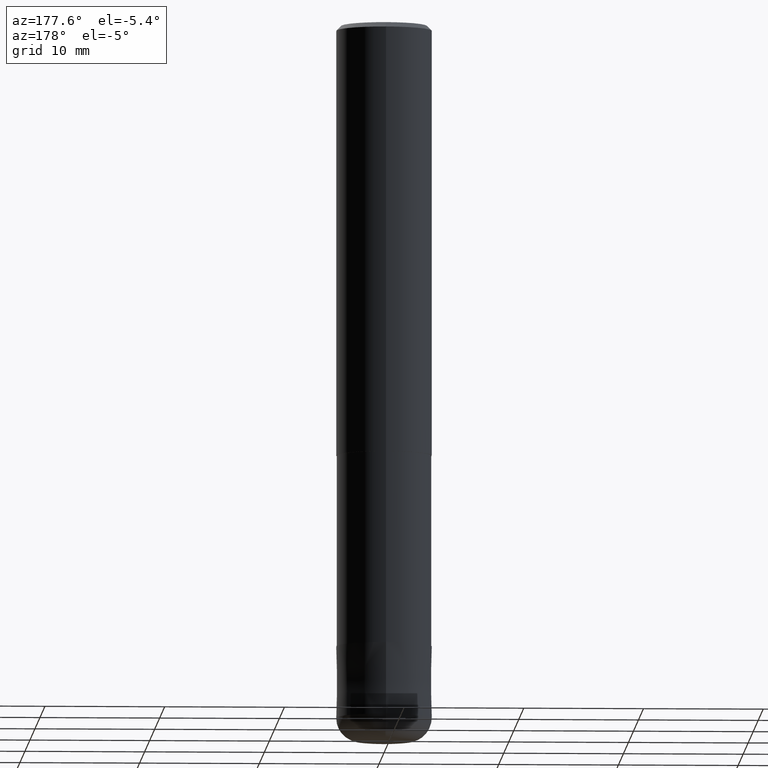
[diagram: clean part render]
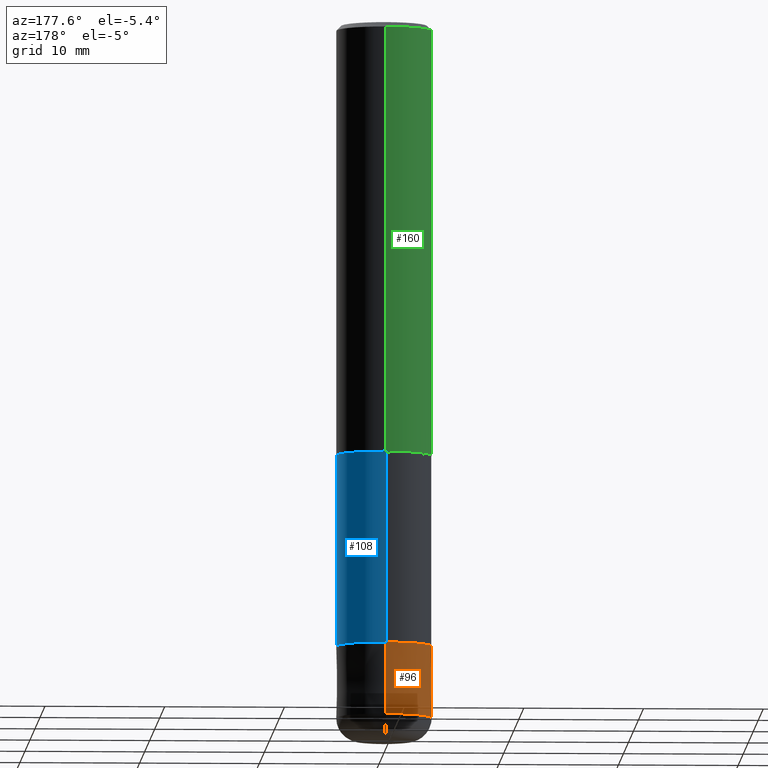
[diagram: same view with three faces highlighted in distinct colors, each labeled with its STEP entity id]
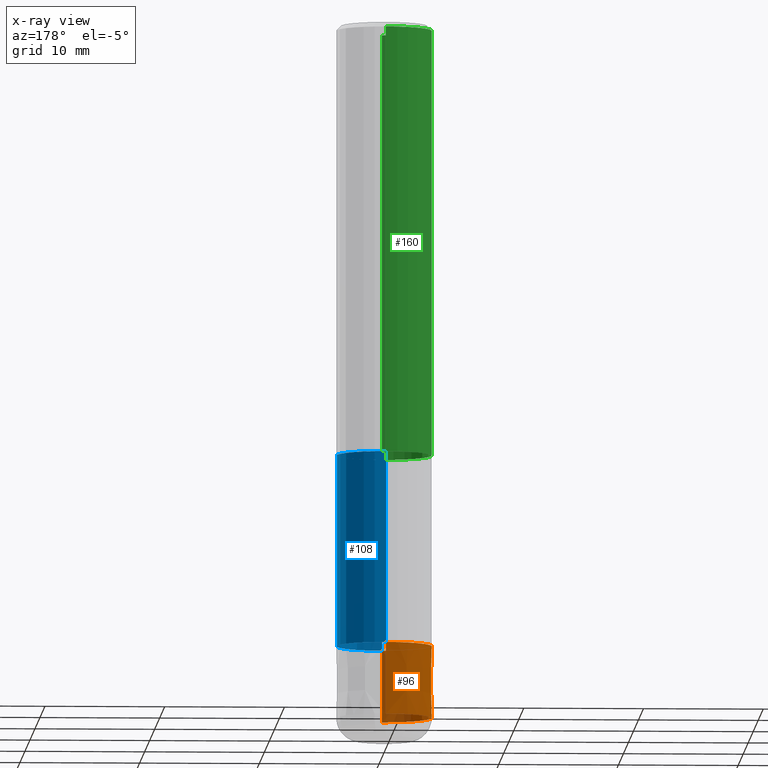
[diagram: x-ray of the same camera — body ghosted, the three highlighted faces saturated]
A machine part, auxiliary view with three faces highlighted in distinct colors.
The next image is the same camera in x-ray (body ghosted, the three faces saturated) — at least one of them is partly hidden behind the body in this view.
Their STEP definitions:

[orange] entity #96 — the highlighted conical surface has half-angle 0.001 deg.
#94=EDGE_CURVE('',#202,#114,#232,.T.);
#96=ADVANCED_FACE('',(#234),#235,.T.);
#114=VERTEX_POINT('',#256);
#120=EDGE_CURVE('',#206,#202,#262,.T.);
#140=EDGE_CURVE('',#144,#114,#284,.T.);
#144=VERTEX_POINT('',#288);
#146=EDGE_CURVE('',#144,#206,#290,.T.);
#202=VERTEX_POINT('',#355);
#206=VERTEX_POINT('',#359);
#232=LINE('',#378,#379);
#234=FACE_OUTER_BOUND('',#381,.T.);
#235=CONICAL_SURFACE('',#382,3.99995,1.66666666651586E-005);
#256=CARTESIAN_POINT('',(0.0,4.0,-58.0));
#262=CIRCLE('',#412,3.9999);
#284=CIRCLE('',#441,4.0);
#288=CARTESIAN_POINT('',(4.89842541528951E-016,-4.0,-58.0));
#290=LINE('',#450,#451);
#355=CARTESIAN_POINT('',(0.0,3.9999,-52.0));
#359=CARTESIAN_POINT('',(4.89830295465413E-016,-3.9999,-52.0));
#378=CARTESIAN_POINT('',(-4.89836418497182E-016,3.99995,-55.0));
#379=VECTOR('',#548,1.0);
#381=EDGE_LOOP('',(#550,#551,#552,#553));
#382=AXIS2_PLACEMENT_3D('',#554,#555,#556);
#412=AXIS2_PLACEMENT_3D('',#579,#580,#581);
#441=AXIS2_PLACEMENT_3D('',#616,#617,#618);
#450=CARTESIAN_POINT('',(4.89836418497182E-016,-3.99995,-55.0));
#451=VECTOR('',#620,1.0);
#548=DIRECTION('',(-2.04101058942479E-021,1.6666666664387E-005,-0.999999999861111));
#550=ORIENTED_EDGE('',*,*,#94,.T.);
#551=ORIENTED_EDGE('',*,*,#140,.F.);
#552=ORIENTED_EDGE('',*,*,#146,.T.);
#553=ORIENTED_EDGE('',*,*,#120,.T.);
#554=CARTESIAN_POINT('',(0.0,0.0,-55.0));
#555=DIRECTION('',(0.0,-0.0,-1.0));
#556=DIRECTION('',(0.0,1.0,0.0));
#579=CARTESIAN_POINT('',(0.0,0.0,-52.0));
#580=DIRECTION('',(0.0,0.0,-1.0));
#581=DIRECTION('',(0.0,1.0,0.0));
#616=CARTESIAN_POINT('',(0.0,0.0,-58.0));
#617=DIRECTION('',(0.0,0.0,-1.0));
#618=DIRECTION('',(0.0,1.0,0.0));
#620=DIRECTION('',(-2.04101058942479E-021,1.6666666664387E-005,0.999999999861111));

[blue] entity #108 — the highlighted cylindrical surface (partial cylindrical patch) has radius 3.96 mm, axis along (-0, -0, 1).
#100=VERTEX_POINT('',#241);
#102=VERTEX_POINT('',#243);
#108=ADVANCED_FACE('',(#249),#250,.T.);
#116=EDGE_CURVE('',#168,#102,#258,.T.);
#124=EDGE_CURVE('',#100,#164,#267,.T.);
#164=VERTEX_POINT('',#311);
#168=VERTEX_POINT('',#316);
#182=EDGE_CURVE('',#100,#168,#331,.T.);
#196=EDGE_CURVE('',#102,#164,#349,.T.);
#241=CARTESIAN_POINT('',(0.0,3.95995,-36.0));
#243=CARTESIAN_POINT('',(4.84937993081892E-016,-3.95995,-52.0));
#249=FACE_OUTER_BOUND('',#397,.T.);
#250=CYLINDRICAL_SURFACE('',#398,3.95995);
#258=CIRCLE('',#407,3.95995);
#267=CIRCLE('',#418,3.95995);
#311=CARTESIAN_POINT('',(4.84937993081892E-016,-3.95995,-36.0));
#316=CARTESIAN_POINT('',(0.0,3.95995,-52.0));
#331=LINE('',#500,#501);
#349=LINE('',#522,#523);
#397=EDGE_LOOP('',(#569,#570,#571,#572));
#398=AXIS2_PLACEMENT_3D('',#573,#574,#575);
#407=AXIS2_PLACEMENT_3D('',#576,#577,#578);
#418=AXIS2_PLACEMENT_3D('',#590,#591,#592);
#500=CARTESIAN_POINT('',(-4.84937993081892E-016,3.95995,-44.0));
#501=VECTOR('',#674,1.0);
#522=CARTESIAN_POINT('',(4.84937993081892E-016,-3.95995,-44.0));
#523=VECTOR('',#707,1.0);
#569=ORIENTED_EDGE('',*,*,#182,.F.);
#570=ORIENTED_EDGE('',*,*,#124,.T.);
#571=ORIENTED_EDGE('',*,*,#196,.F.);
#572=ORIENTED_EDGE('',*,*,#116,.F.);
#573=CARTESIAN_POINT('',(0.0,0.0,-44.0));
#574=DIRECTION('',(-0.0,-0.0,1.0));
#575=DIRECTION('',(0.0,1.0,0.0));
#576=CARTESIAN_POINT('',(0.0,0.0,-52.0));
#577=DIRECTION('',(0.0,0.0,-1.0));
#578=DIRECTION('',(0.0,1.0,0.0));
#590=CARTESIAN_POINT('',(0.0,0.0,-36.0));
#591=DIRECTION('',(0.0,0.0,-1.0));
#592=DIRECTION('',(0.0,1.0,0.0));
#674=DIRECTION('',(0.0,0.0,-1.0));
#707=DIRECTION('',(-0.0,-0.0,1.0));

[green] entity #160 — the highlighted cylindrical surface (partial cylindrical patch) has radius 4 mm, axis along (-0, -0, 1).
#110=VERTEX_POINT('',#252);
#118=VERTEX_POINT('',#260);
#142=EDGE_CURVE('',#118,#110,#286,.T.);
#152=VERTEX_POINT('',#297);
#160=ADVANCED_FACE('',(#306),#307,.T.);
#170=VERTEX_POINT('',#318);
#178=EDGE_CURVE('',#110,#170,#327,.T.);
#180=EDGE_CURVE('',#170,#152,#329,.T.);
#200=EDGE_CURVE('',#118,#152,#353,.T.);
#252=CARTESIAN_POINT('',(4.89842541528951E-016,-4.0,-0.399999999999999));
#260=CARTESIAN_POINT('',(4.89842541528951E-016,-4.0,-36.0));
#286=LINE('',#444,#445);
#297=CARTESIAN_POINT('',(0.0,4.0,-36.0));
#306=FACE_OUTER_BOUND('',#470,.T.);
#307=CYLINDRICAL_SURFACE('',#471,4.0);
#318=CARTESIAN_POINT('',(0.0,4.0,-0.399999999999999));
#327=CIRCLE('',#493,4.0);
#329=LINE('',#496,#497);
#353=CIRCLE('',#530,4.0);
#444=CARTESIAN_POINT('',(4.89842541528951E-016,-4.0,-18.2));
#445=VECTOR('',#619,1.0);
#470=EDGE_LOOP('',(#640,#641,#642,#643));
#471=AXIS2_PLACEMENT_3D('',#644,#645,#646);
#493=AXIS2_PLACEMENT_3D('',#670,#671,#672);
#496=CARTESIAN_POINT('',(-4.89842541528951E-016,4.0,-18.2));
#497=VECTOR('',#673,1.0);
#530=AXIS2_PLACEMENT_3D('',#709,#710,#711);
#619=DIRECTION('',(-0.0,-0.0,1.0));
#640=ORIENTED_EDGE('',*,*,#180,.T.);
#641=ORIENTED_EDGE('',*,*,#200,.F.);
#642=ORIENTED_EDGE('',*,*,#142,.T.);
#643=ORIENTED_EDGE('',*,*,#178,.T.);
#644=CARTESIAN_POINT('',(0.0,0.0,-18.2));
#645=DIRECTION('',(-0.0,-0.0,1.0));
#646=DIRECTION('',(0.0,1.0,0.0));
#670=CARTESIAN_POINT('',(0.0,0.0,-0.399999999999999));
#671=DIRECTION('',(0.0,0.0,-1.0));
#672=DIRECTION('',(0.0,1.0,0.0));
#673=DIRECTION('',(0.0,0.0,-1.0));
#709=CARTESIAN_POINT('',(0.0,0.0,-36.0));
#710=DIRECTION('',(0.0,0.0,-1.0));
#711=DIRECTION('',(0.0,1.0,0.0));